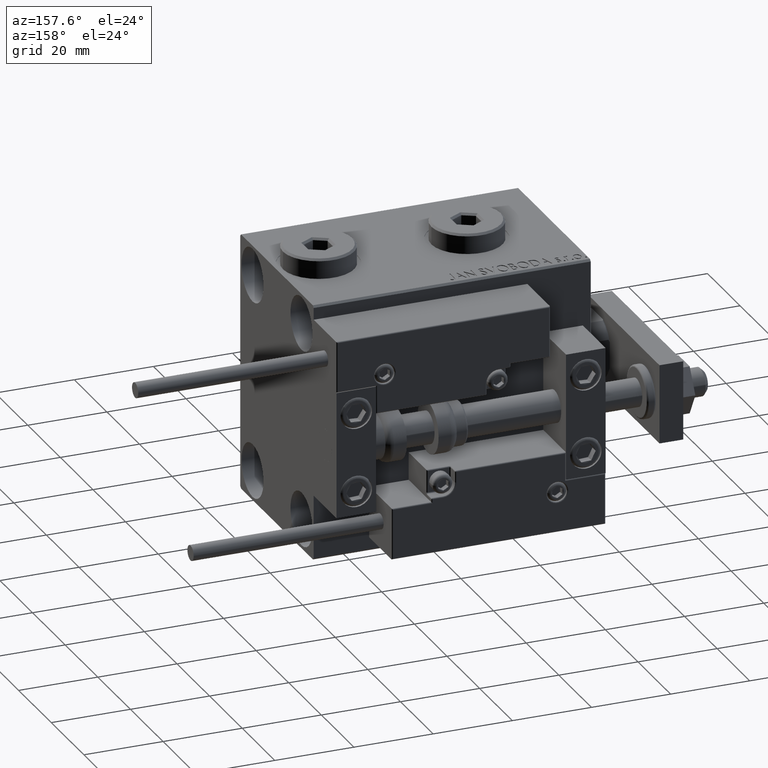
[diagram: clean part render]
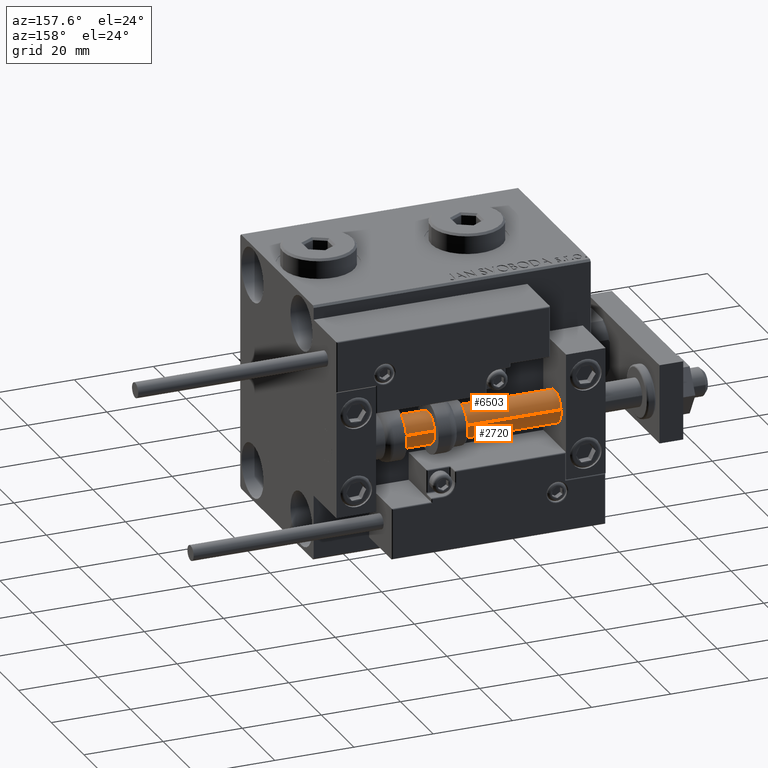
[diagram: same view with one multi-face feature highlighted, each face labeled with its STEP entity id]
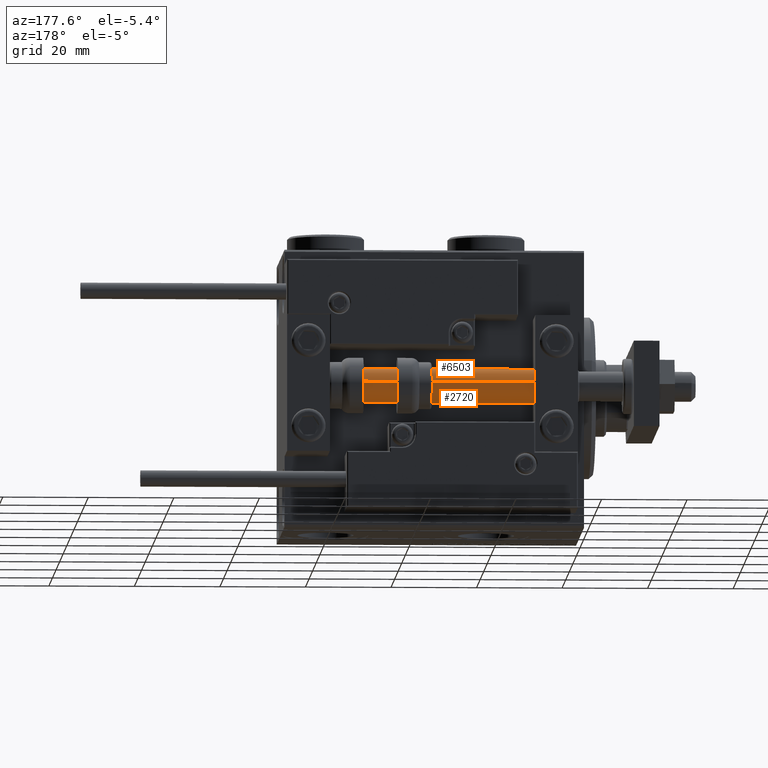
[diagram: same view with one multi-face feature highlighted, each face labeled with its STEP entity id]
A machine part, auxiliary view. The highlighted faces form ONE feature: a constant-radius fillet chain: 2 tangent blend faces with common blend radius 4 mm. The faces share edges in the B-rep.
A second angle (auxiliary view) of the same feature is appended — it is thin or edge-on in the first view.
Their STEP definitions:
[1] entity #2720 (Cylinder):
#1337 = VERTEX_POINT ( 'NONE', #17849 ) ;
#2456 = VECTOR ( 'NONE', #35926, 1000.000000000000000 ) ;
#2720 = ADVANCED_FACE ( 'NONE', ( #3713 ), #39906, .T. ) ;
#3713 = FACE_OUTER_BOUND ( 'NONE', #17084, .T. ) ;
#3934 = DIRECTION ( 'NONE',  ( 1.000000000000000000, 0.000000000000000000, 0.000000000000000000 ) ) ;
#5837 = CARTESIAN_POINT ( 'NONE',  ( 4.000000000000000000, 4.898587196589412829E-16, 2.000000000000029310 ) ) ;
#6275 = EDGE_CURVE ( 'NONE', #25202, #47988, #12724, .T. ) ;
#8314 = CARTESIAN_POINT ( 'NONE',  ( 4.000000000000000000, 4.898587196589412829E-16, 70.00000000000000000 ) ) ;
#8563 = AXIS2_PLACEMENT_3D ( 'NONE', #13949, #45768, #10050 ) ;
#10050 = DIRECTION ( 'NONE',  ( 1.000000000000000000, 0.000000000000000000, 0.000000000000000000 ) ) ;
#12551 = EDGE_CURVE ( 'NONE', #47168, #1337, #44447, .T. ) ;
#12724 = LINE ( 'NONE', #8314, #2456 ) ;
#13949 = CARTESIAN_POINT ( 'NONE',  ( 0.000000000000000000, 0.000000000000000000, 70.00000000000000000 ) ) ;
#14637 = ORIENTED_EDGE ( 'NONE', *, *, #26046, .T. ) ;
#15532 = AXIS2_PLACEMENT_3D ( 'NONE', #27917, #16182, #44350 ) ;
#16182 = DIRECTION ( 'NONE',  ( -0.000000000000000000, -0.000000000000000000, -1.000000000000000000 ) ) ;
#17084 = EDGE_LOOP ( 'NONE', ( #17605, #36638, #50024, #14637 ) ) ;
#17262 = EDGE_CURVE ( 'NONE', #47168, #25202, #24356, .T. ) ;
#17605 = ORIENTED_EDGE ( 'NONE', *, *, #6275, .F. ) ;
#17849 = CARTESIAN_POINT ( 'NONE',  ( -4.000000000000000000, 0.000000000000000000, 2.000000000000029310 ) ) ;
#24356 = CIRCLE ( 'NONE', #8563, 4.000000000000000000 ) ;
#25202 = VERTEX_POINT ( 'NONE', #50787 ) ;
#26046 = EDGE_CURVE ( 'NONE', #1337, #47988, #33736, .T. ) ;
#27917 = CARTESIAN_POINT ( 'NONE',  ( 0.000000000000000000, 0.000000000000000000, 70.00000000000000000 ) ) ;
#28653 = CARTESIAN_POINT ( 'NONE',  ( 0.000000000000000000, 0.000000000000000000, 2.000000000000029310 ) ) ;
#29518 = CARTESIAN_POINT ( 'NONE',  ( -4.000000000000000000, 0.000000000000000000, 70.00000000000000000 ) ) ;
#33386 = VECTOR ( 'NONE', #37130, 1000.000000000000000 ) ;
#33736 = CIRCLE ( 'NONE', #35409, 4.000000000000000000 ) ;
#35409 = AXIS2_PLACEMENT_3D ( 'NONE', #28653, #35961, #3934 ) ;
#35926 = DIRECTION ( 'NONE',  ( -0.000000000000000000, -0.000000000000000000, -1.000000000000000000 ) ) ;
#35961 = DIRECTION ( 'NONE',  ( -0.000000000000000000, -0.000000000000000000, 1.000000000000000000 ) ) ;
#36638 = ORIENTED_EDGE ( 'NONE', *, *, #17262, .F. ) ;
#37130 = DIRECTION ( 'NONE',  ( -0.000000000000000000, -0.000000000000000000, -1.000000000000000000 ) ) ;
#39906 = CYLINDRICAL_SURFACE ( 'NONE', #15532, 4.000000000000000000 ) ;
#40781 = CARTESIAN_POINT ( 'NONE',  ( -4.000000000000000000, 0.000000000000000000, 70.00000000000000000 ) ) ;
#44350 = DIRECTION ( 'NONE',  ( -1.000000000000000000, 0.000000000000000000, 0.000000000000000000 ) ) ;
#44447 = LINE ( 'NONE', #40781, #33386 ) ;
#45768 = DIRECTION ( 'NONE',  ( 0.000000000000000000, 0.000000000000000000, 1.000000000000000000 ) ) ;
#47168 = VERTEX_POINT ( 'NONE', #29518 ) ;
#47988 = VERTEX_POINT ( 'NONE', #5837 ) ;
#50024 = ORIENTED_EDGE ( 'NONE', *, *, #12551, .T. ) ;
#50787 = CARTESIAN_POINT ( 'NONE',  ( 4.000000000000000000, 4.898587196589412829E-16, 70.00000000000000000 ) ) ;
[2] entity #6503 (Cylinder):
#1337 = VERTEX_POINT ( 'NONE', #17849 ) ;
#1616 = AXIS2_PLACEMENT_3D ( 'NONE', #7229, #25990, #6710 ) ;
#2456 = VECTOR ( 'NONE', #35926, 1000.000000000000000 ) ;
#4594 = ORIENTED_EDGE ( 'NONE', *, *, #6275, .T. ) ;
#5837 = CARTESIAN_POINT ( 'NONE',  ( 4.000000000000000000, 4.898587196589412829E-16, 2.000000000000029310 ) ) ;
#6275 = EDGE_CURVE ( 'NONE', #25202, #47988, #12724, .T. ) ;
#6483 = CARTESIAN_POINT ( 'NONE',  ( 0.000000000000000000, 0.000000000000000000, 70.00000000000000000 ) ) ;
#6503 = ADVANCED_FACE ( 'NONE', ( #27009 ), #42413, .T. ) ;
#6710 = DIRECTION ( 'NONE',  ( -1.000000000000000000, 0.000000000000000000, 0.000000000000000000 ) ) ;
#7229 = CARTESIAN_POINT ( 'NONE',  ( 0.000000000000000000, 0.000000000000000000, 70.00000000000000000 ) ) ;
#8311 = CIRCLE ( 'NONE', #49915, 4.000000000000000000 ) ;
#8314 = CARTESIAN_POINT ( 'NONE',  ( 4.000000000000000000, 4.898587196589412829E-16, 70.00000000000000000 ) ) ;
#8862 = EDGE_CURVE ( 'NONE', #25202, #47168, #8311, .T. ) ;
#10379 = DIRECTION ( 'NONE',  ( 0.000000000000000000, 0.000000000000000000, 1.000000000000000000 ) ) ;
#12551 = EDGE_CURVE ( 'NONE', #47168, #1337, #44447, .T. ) ;
#12724 = LINE ( 'NONE', #8314, #2456 ) ;
#14531 = DIRECTION ( 'NONE',  ( 1.000000000000000000, 0.000000000000000000, 0.000000000000000000 ) ) ;
#15774 = EDGE_LOOP ( 'NONE', ( #22063, #4594, #30260, #41458 ) ) ;
#17849 = CARTESIAN_POINT ( 'NONE',  ( -4.000000000000000000, 0.000000000000000000, 2.000000000000029310 ) ) ;
#20462 = AXIS2_PLACEMENT_3D ( 'NONE', #40685, #28958, #21652 ) ;
#21652 = DIRECTION ( 'NONE',  ( 1.000000000000000000, 0.000000000000000000, 0.000000000000000000 ) ) ;
#22063 = ORIENTED_EDGE ( 'NONE', *, *, #8862, .F. ) ;
#25202 = VERTEX_POINT ( 'NONE', #50787 ) ;
#25990 = DIRECTION ( 'NONE',  ( -0.000000000000000000, -0.000000000000000000, -1.000000000000000000 ) ) ;
#27009 = FACE_OUTER_BOUND ( 'NONE', #15774, .T. ) ;
#28958 = DIRECTION ( 'NONE',  ( -0.000000000000000000, -0.000000000000000000, 1.000000000000000000 ) ) ;
#29518 = CARTESIAN_POINT ( 'NONE',  ( -4.000000000000000000, 0.000000000000000000, 70.00000000000000000 ) ) ;
#30260 = ORIENTED_EDGE ( 'NONE', *, *, #49580, .T. ) ;
#33386 = VECTOR ( 'NONE', #37130, 1000.000000000000000 ) ;
#35926 = DIRECTION ( 'NONE',  ( -0.000000000000000000, -0.000000000000000000, -1.000000000000000000 ) ) ;
#37130 = DIRECTION ( 'NONE',  ( -0.000000000000000000, -0.000000000000000000, -1.000000000000000000 ) ) ;
#38750 = CIRCLE ( 'NONE', #20462, 4.000000000000000000 ) ;
#40685 = CARTESIAN_POINT ( 'NONE',  ( 0.000000000000000000, 0.000000000000000000, 2.000000000000029310 ) ) ;
#40781 = CARTESIAN_POINT ( 'NONE',  ( -4.000000000000000000, 0.000000000000000000, 70.00000000000000000 ) ) ;
#41458 = ORIENTED_EDGE ( 'NONE', *, *, #12551, .F. ) ;
#42413 = CYLINDRICAL_SURFACE ( 'NONE', #1616, 4.000000000000000000 ) ;
#44447 = LINE ( 'NONE', #40781, #33386 ) ;
#47168 = VERTEX_POINT ( 'NONE', #29518 ) ;
#47988 = VERTEX_POINT ( 'NONE', #5837 ) ;
#49580 = EDGE_CURVE ( 'NONE', #47988, #1337, #38750, .T. ) ;
#49915 = AXIS2_PLACEMENT_3D ( 'NONE', #6483, #10379, #14531 ) ;
#50787 = CARTESIAN_POINT ( 'NONE',  ( 4.000000000000000000, 4.898587196589412829E-16, 70.00000000000000000 ) ) ;